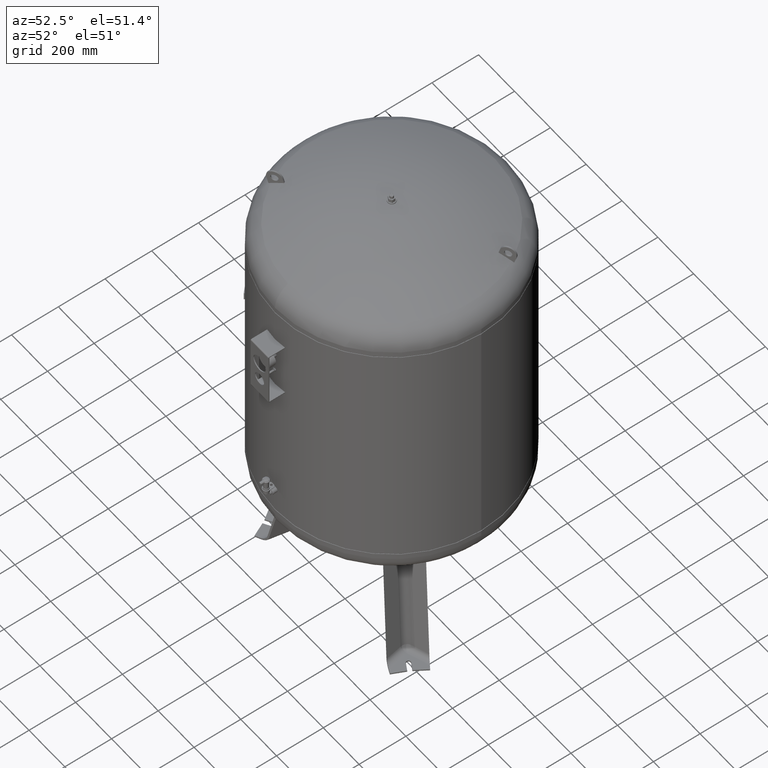
[diagram: clean part render]
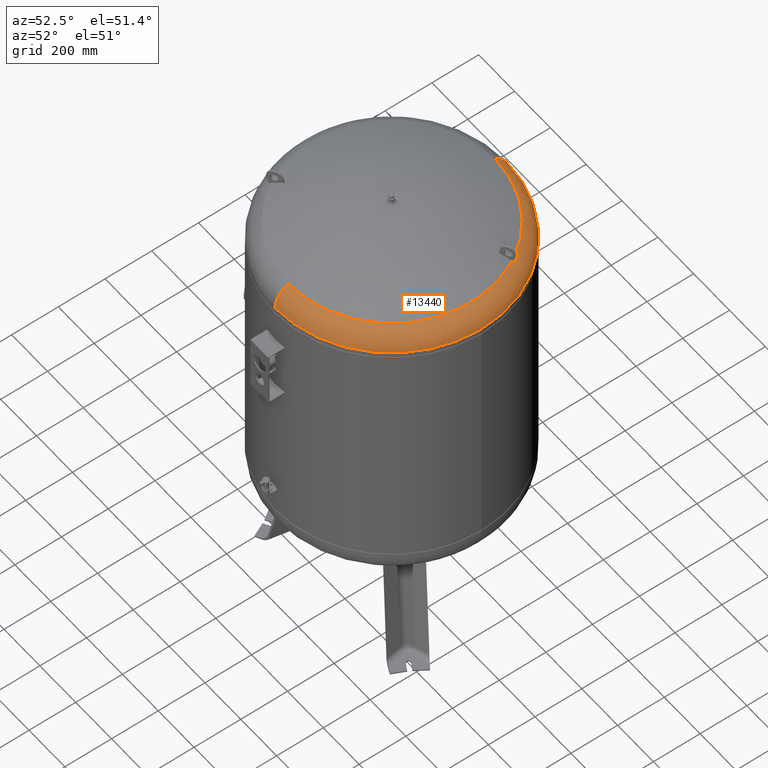
[diagram: same view with one face highlighted and labeled with its STEP entity id]
A machine part, auxiliary view. The second image highlights one B-rep face of the part: STEP entity #13440.
In plain terms, the highlighted toroidal blend (fillet) surface has major radius 399.4 mm and minor (blend) radius 100.6 mm.
Its self-contained STEP definition (entity closure, byte-faithful):
#13244=CARTESIAN_POINT('',(500.0,-3.553717E-014,1775.544644927280400));
#13245=VERTEX_POINT('',#13244);
#13269=CARTESIAN_POINT('',(3.753887E-014,499.999999999999940,1775.544644927280400));
#13270=VERTEX_POINT('',#13269);
#13278=CARTESIAN_POINT('',(2.260647E-015,-3.553717E-014,1775.544644927280400));
#13279=DIRECTION('',(0.0,0.0,-1.0));
#13280=DIRECTION('',(1.0,0.0,0.0));
#13281=AXIS2_PLACEMENT_3D('',#13278,#13279,#13280);
#13282=CIRCLE('',#13281,500.0);
#13283=EDGE_CURVE('',#13270,#13245,#13282,.T.);
#13351=CARTESIAN_POINT('',(-2.369145E-014,-3.553717E-014,1775.544644927280400));
#13352=DIRECTION('',(1.168563E-017,-1.836970E-016,-1.0));
#13353=DIRECTION('',(0.0,-1.0,0.0));
#13354=AXIS2_PLACEMENT_3D('',#13351,#13352,#13353);
#13355=TOROIDAL_SURFACE('',#13354,399.399999999999920,100.600000000000010);
#13356=CARTESIAN_POINT('',(-2.369145E-014,-500.000000000000060,1775.544644927280400));
#13357=VERTEX_POINT('',#13356);
#13358=CARTESIAN_POINT('',(-2.474646E-014,-443.777777777777600,1865.827383252533800));
#13359=VERTEX_POINT('',#13358);
#13360=CARTESIAN_POINT('',(-2.369145E-014,-399.399999999999980,1775.544644927280400));
#13361=DIRECTION('',(-1.0,0.0,0.0));
#13362=DIRECTION('',(0.0,-1.0,0.0));
#13363=AXIS2_PLACEMENT_3D('',#13360,#13361,#13362);
#13364=CIRCLE('',#13363,100.600000000000010);
#13365=EDGE_CURVE('',#13357,#13359,#13364,.T.);
#13366=ORIENTED_EDGE('',*,*,#13365,.F.);
#13367=CARTESIAN_POINT('',(2.260647E-015,-3.553717E-014,1775.544644927280400));
#13368=DIRECTION('',(0.0,0.0,-1.0));
#13369=DIRECTION('',(1.0,0.0,0.0));
#13370=AXIS2_PLACEMENT_3D('',#13367,#13368,#13369);
#13371=CIRCLE('',#13370,500.0);
#13372=EDGE_CURVE('',#13245,#13357,#13371,.T.);
#13373=ORIENTED_EDGE('',*,*,#13372,.F.);
#13374=ORIENTED_EDGE('',*,*,#13283,.F.);
#13375=CARTESIAN_POINT('',(2.959885E-014,443.777777777777600,1865.827383252533800));
#13376=VERTEX_POINT('',#13375);
#13377=CARTESIAN_POINT('',(2.521933E-014,399.399999999999860,1775.544644927280400));
#13378=DIRECTION('',(1.0,0.0,0.0));
#13379=DIRECTION('',(0.0,1.0,0.0));
#13380=AXIS2_PLACEMENT_3D('',#13377,#13378,#13379);
#13381=CIRCLE('',#13380,100.600000000000010);
#13382=EDGE_CURVE('',#13270,#13376,#13381,.T.);
#13383=ORIENTED_EDGE('',*,*,#13382,.T.);
#13384=CARTESIAN_POINT('',(382.814047410498800,224.481894937152840,1865.827383252533800));
#13385=VERTEX_POINT('',#13384);
#13386=CARTESIAN_POINT('',(1.205637E-015,-1.895250E-014,1865.827383252533800));
#13387=DIRECTION('',(0.0,0.0,-1.0));
#13388=DIRECTION('',(1.0,0.0,0.0));
#13389=AXIS2_PLACEMENT_3D('',#13386,#13387,#13388);
#13390=CIRCLE('',#13389,443.777777777777600);
#13391=EDGE_CURVE('',#13376,#13385,#13390,.T.);
#13392=ORIENTED_EDGE('',*,*,#13391,.T.);
#13393=CARTESIAN_POINT('',(389.830975236120140,228.533120106159600,1861.371241859355700));
#13394=VERTEX_POINT('',#13393);
#13395=CARTESIAN_POINT('',(382.814047410498800,224.481894937152840,1865.827383252533800));
#13396=CARTESIAN_POINT('',(383.639422866123480,224.958425678640250,1865.358923998316000));
#13397=CARTESIAN_POINT('',(384.466016830460770,225.435659926460910,1864.871006334071100));
#13398=CARTESIAN_POINT('',(386.558917595189540,226.643996746364280,1863.585746300583200));
#13399=CARTESIAN_POINT('',(387.823245864690140,227.373957013104530,1862.762717578220400));
#13400=CARTESIAN_POINT('',(389.327563745971080,228.242475346808870,1861.724648865125300));
#13401=CARTESIAN_POINT('',(389.579557890296660,228.387964233869470,1861.548753709753100));
#13402=CARTESIAN_POINT('',(389.830975236120140,228.533120106159600,1861.371241859355700));
#13403=B_SPLINE_CURVE_WITH_KNOTS('',3,(#13395,#13396,#13397,#13398,#13399,#13400,#13401,#13402),.UNSPECIFIED.,.F.,.U.,(4,2,2,4),(490.490461707606410,493.520789239596300,498.176642435137920,499.115761009270220),.UNSPECIFIED.);
#13404=EDGE_CURVE('',#13385,#13394,#13403,.T.);
#13405=ORIENTED_EDGE('',*,*,#13404,.T.);
#13406=CARTESIAN_POINT('',(392.830975236120080,223.336967683452970,1861.371241859355700));
#13407=VERTEX_POINT('',#13406);
#13408=CARTESIAN_POINT('',(389.830975236120140,228.533120106159600,1861.371241859355700));
#13409=CARTESIAN_POINT('',(390.333307968774880,227.664983484212660,1861.374723691362300));
#13410=CARTESIAN_POINT('',(390.833741791658330,226.799162381118410,1861.376448557724000));
#13411=CARTESIAN_POINT('',(391.332224433282480,225.935765119134290,1861.376448557724000));
#13412=CARTESIAN_POINT('',(391.830707074909470,225.072367857145200,1861.376448557724000));
#13413=CARTESIAN_POINT('',(392.330313233882860,224.206068902062920,1861.374723691362300));
#13414=CARTESIAN_POINT('',(392.830975236120080,223.336967683452970,1861.371241859355700));
#13415=B_SPLINE_CURVE_WITH_KNOTS('',3,(#13408,#13409,#13410,#13411,#13412,#13413,#13414),.UNSPECIFIED.,.F.,.U.,(4,3,4),(-2.990895849744737,0.0,2.990895849762006),.UNSPECIFIED.);
#13416=EDGE_CURVE('',#13394,#13407,#13415,.T.);
#13417=ORIENTED_EDGE('',*,*,#13416,.T.);
#13418=CARTESIAN_POINT('',(385.814047410498740,219.285742514446160,1865.827383252533800));
#13419=VERTEX_POINT('',#13418);
#13420=CARTESIAN_POINT('',(392.830975236120080,223.336967683452970,1861.371241859355700));
#13421=CARTESIAN_POINT('',(392.579557890296540,223.191811811162810,1861.548753709753100));
#13422=CARTESIAN_POINT('',(392.327563745971020,223.046322924102180,1861.724648865125300));
#13423=CARTESIAN_POINT('',(390.823245864689970,222.177804590397760,1862.762717578220600));
#13424=CARTESIAN_POINT('',(389.558917595189310,221.447844323657480,1863.585746300583200));
#13425=CARTESIAN_POINT('',(387.466016830460660,220.239507503754170,1864.871006334071100));
#13426=CARTESIAN_POINT('',(386.639422866123310,219.762273255933510,1865.358923998316000));
#13427=CARTESIAN_POINT('',(385.814047410498740,219.285742514446160,1865.827383252533800));
#13428=B_SPLINE_CURVE_WITH_KNOTS('',3,(#13420,#13421,#13422,#13423,#13424,#13425,#13426,#13427),.UNSPECIFIED.,.F.,.U.,(4,2,2,4),(96.832413882587730,97.771532456720365,102.427385652262000,105.457713184251520),.UNSPECIFIED.);
#13429=EDGE_CURVE('',#13407,#13419,#13428,.T.);
#13430=ORIENTED_EDGE('',*,*,#13429,.T.);
#13431=CARTESIAN_POINT('',(1.205637E-015,-1.895250E-014,1865.827383252533800));
#13432=DIRECTION('',(0.0,0.0,-1.0));
#13433=DIRECTION('',(1.0,0.0,0.0));
#13434=AXIS2_PLACEMENT_3D('',#13431,#13432,#13433);
#13435=CIRCLE('',#13434,443.777777777777600);
#13436=EDGE_CURVE('',#13419,#13359,#13435,.T.);
#13437=ORIENTED_EDGE('',*,*,#13436,.T.);
#13438=EDGE_LOOP('',(#13366,#13373,#13374,#13383,#13392,#13405,#13417,#13430,#13437));
#13439=FACE_OUTER_BOUND('',#13438,.T.);
#13440=ADVANCED_FACE('',(#13439),#13355,.T.);